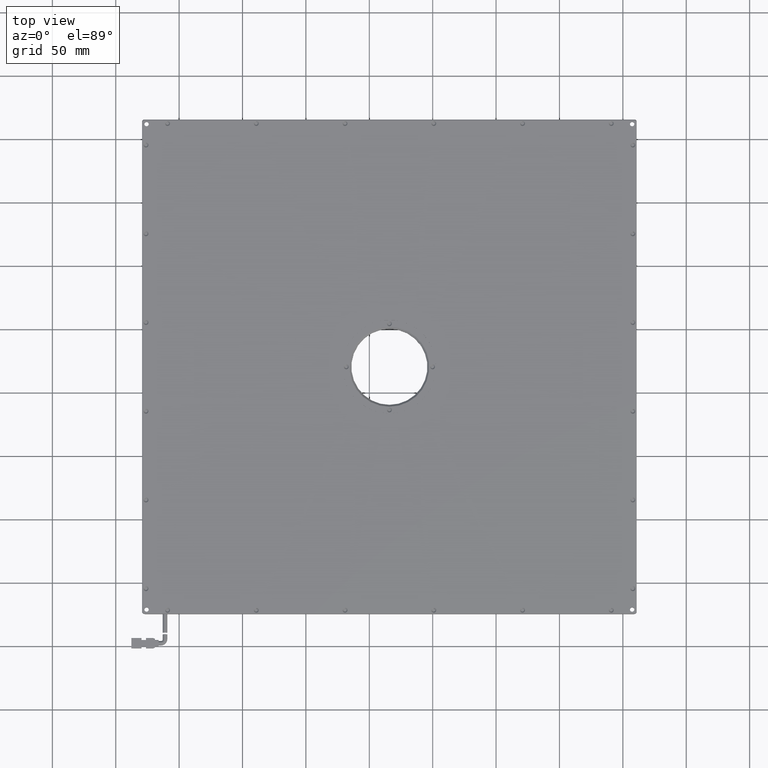
[diagram: clean part render]
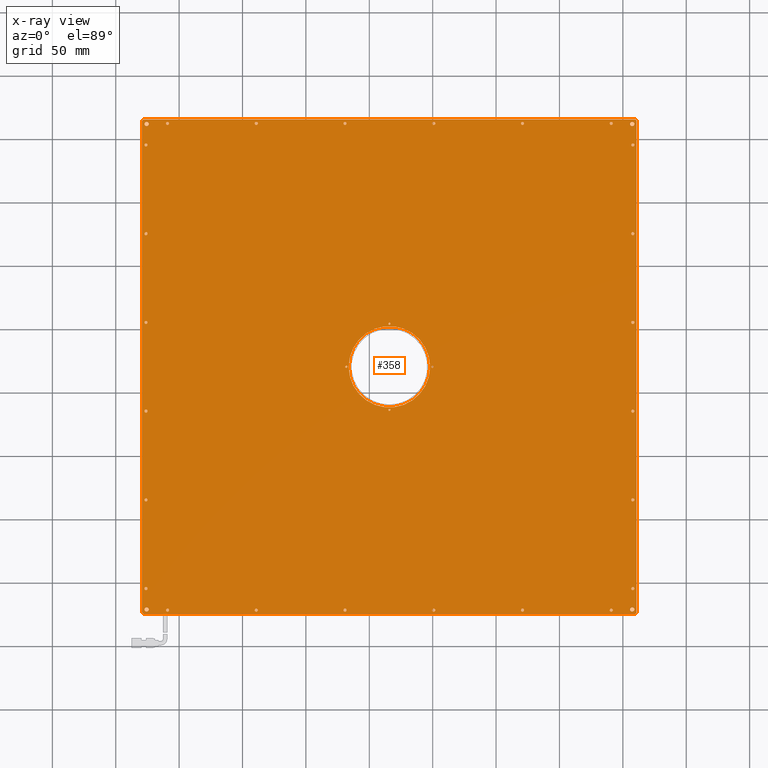
[diagram: x-ray — body ghosted, one internal face saturated and labeled with its STEP entity id]
A machine part, top view, then the same camera in x-ray: the body is ghosted and one INTERNAL B-rep face — a face not visible from any outside direction — is saturated and labeled: STEP entity #358.
In plain terms, the highlighted planar face has unit normal (0, -0, 1).
Its self-contained STEP definition (entity closure, byte-faithful):
#14 = DIRECTION ( 'NONE',  ( 0.0000000000000000000, 0.0000000000000000000, -1.000000000000000000 ) ) ;
#34 = DIRECTION ( 'NONE',  ( 0.0000000000000000000, 0.0000000000000000000, -1.000000000000000000 ) ) ;
#78 = AXIS2_PLACEMENT_3D ( 'NONE', #3281, #14, #4928 ) ;
#98 = CARTESIAN_POINT ( 'NONE',  ( -207.9484017985390400, 212.4229729729718800, 4.249999999999998200 ) ) ;
#112 = EDGE_CURVE ( 'NONE', #13302, #14235, #12412, .T. ) ;
#117 = FACE_BOUND ( 'NONE', #19714, .T. ) ;
#119 = DIRECTION ( 'NONE',  ( 0.0000000000000000000, 0.0000000000000000000, -1.000000000000000000 ) ) ;
#204 = CARTESIAN_POINT ( 'NONE',  ( 159.0515982014616200, 195.4229729729713400, 4.249999999999998200 ) ) ;
#232 = EDGE_LOOP ( 'NONE', ( #3576, #8886 ) ) ;
#270 = DIRECTION ( 'NONE',  ( 0.0000000000000000000, 0.0000000000000000000, -1.000000000000000000 ) ) ;
#285 = EDGE_CURVE ( 'NONE', #21275, #19119, #10242, .T. ) ;
#313 = CIRCLE ( 'NONE', #10414, 1.200000000000006600 ) ;
#318 = EDGE_CURVE ( 'NONE', #8309, #3209, #2806, .T. ) ;
#325 = DIRECTION ( 'NONE',  ( 0.0000000000000000000, 0.0000000000000000000, -1.000000000000000000 ) ) ;
#330 = CARTESIAN_POINT ( 'NONE',  ( -229.1484017985390300, 214.4229729729717100, 4.249999999999996400 ) ) ;
#345 = CIRCLE ( 'NONE', #12551, 1.199999999999999700 ) ;
#358 = ADVANCED_FACE ( 'NONE', ( #6255, #15846, #14265, #117, #18263, #934, #11853, #13745, #17722, #8394, #19869, #9447, #8907, #15323, #4388, #21970, #10777, #13198, #1735, #17475, #1190, #3860, #16925, #12389, #3325, #14524, #19333, #14788, #11046, #18805, #9709, #644, #6531, #2020 ), #907, .F. ) ;
#369 = CARTESIAN_POINT ( 'NONE',  ( -139.1484017985390300, 212.4229729729718800, 4.249999999999998200 ) ) ;
#380 = CARTESIAN_POINT ( 'NONE',  ( -225.6484017985389100, -171.0770270270280700, 4.249999999999998200 ) ) ;
#382 = VERTEX_POINT ( 'NONE', #11252 ) ;
#457 = VERTEX_POINT ( 'NONE', #21734 ) ;
#458 = CIRCLE ( 'NONE', #917, 1.749999999999973800 ) ;
#466 = EDGE_LOOP ( 'NONE', ( #5998, #1728 ) ) ;
#470 = LINE ( 'NONE', #17133, #21518 ) ;
#517 = ORIENTED_EDGE ( 'NONE', *, *, #6321, .F. ) ;
#523 = DIRECTION ( 'NONE',  ( 1.000000000000000000, 0.0000000000000000000, 0.0000000000000000000 ) ) ;
#527 = VERTEX_POINT ( 'NONE', #16759 ) ;
#570 = DIRECTION ( 'NONE',  ( 0.0000000000000000000, 0.0000000000000000000, -1.000000000000000000 ) ) ;
#593 = CIRCLE ( 'NONE', #2178, 1.199999999999999700 ) ;
#612 = DIRECTION ( 'NONE',  ( 1.000000000000000000, 0.0000000000000000000, 0.0000000000000000000 ) ) ;
#625 = AXIS2_PLACEMENT_3D ( 'NONE', #18193, #11242, #4624 ) ;
#644 = FACE_BOUND ( 'NONE', #232, .T. ) ;
#704 = EDGE_CURVE ( 'NONE', #17230, #8408, #13720, .T. ) ;
#756 = CIRCLE ( 'NONE', #19118, 32.10000000000000100 ) ;
#811 = VERTEX_POINT ( 'NONE', #5893 ) ;
#887 = VERTEX_POINT ( 'NONE', #18486 ) ;
#906 = VERTEX_POINT ( 'NONE', #21877 ) ;
#907 = PLANE ( 'NONE',  #15142 ) ;
#917 = AXIS2_PLACEMENT_3D ( 'NONE', #13919, #10528, #10743 ) ;
#928 = CARTESIAN_POINT ( 'NONE',  ( -228.1484017985389100, 215.4229729729718800, 4.249999999999996400 ) ) ;
#934 = FACE_BOUND ( 'NONE', #2349, .T. ) ;
#935 = ORIENTED_EDGE ( 'NONE', *, *, #3450, .F. ) ;
#1003 = EDGE_CURVE ( 'NONE', #6225, #11748, #18469, .T. ) ;
#1017 = EDGE_CURVE ( 'NONE', #382, #5895, #12857, .T. ) ;
#1025 = VERTEX_POINT ( 'NONE', #7518 ) ;
#1068 = CARTESIAN_POINT ( 'NONE',  ( 156.6515982014604400, -154.5770270270286900, 4.249999999999998200 ) ) ;
#1117 = DIRECTION ( 'NONE',  ( 0.0000000000000000000, 0.0000000000000000000, -1.000000000000000000 ) ) ;
#1188 = CARTESIAN_POINT ( 'NONE',  ( -226.1484017985371200, 195.4229729729738900, 4.249999999999998200 ) ) ;
#1190 = FACE_BOUND ( 'NONE', #16070, .T. ) ;
#1272 = AXIS2_PLACEMENT_3D ( 'NONE', #7500, #10691, #10913 ) ;
#1305 = EDGE_CURVE ( 'NONE', #19905, #1025, #9083, .T. ) ;
#1320 = CARTESIAN_POINT ( 'NONE',  ( -227.3484017985385600, 55.42297297297388100, 4.249999999999998200 ) ) ;
#1378 = CIRCLE ( 'NONE', #17289, 1.200000000000006600 ) ;
#1473 = EDGE_LOOP ( 'NONE', ( #13738, #19131 ) ) ;
#1516 = ORIENTED_EDGE ( 'NONE', *, *, #2131, .F. ) ;
#1541 = DIRECTION ( 'NONE',  ( 0.0000000000000000000, 0.0000000000000000000, -1.000000000000000000 ) ) ;
#1552 = CIRCLE ( 'NONE', #10170, 1.200000000000006600 ) ;
#1636 = CARTESIAN_POINT ( 'NONE',  ( 157.8515982014604300, -154.5770270270286900, 4.249999999999998200 ) ) ;
#1706 = CIRCLE ( 'NONE', #12983, 1.749999999999973800 ) ;
#1728 = ORIENTED_EDGE ( 'NONE', *, *, #4549, .F. ) ;
#1735 = FACE_BOUND ( 'NONE', #13937, .T. ) ;
#1749 = CARTESIAN_POINT ( 'NONE',  ( 0.8515982014610026200, 212.4229729729719100, 4.249999999999998200 ) ) ;
#1817 = ORIENTED_EDGE ( 'NONE', *, *, #19271, .F. ) ;
#1842 = CIRCLE ( 'NONE', #8100, 0.7999999999999882800 ) ;
#1846 = EDGE_LOOP ( 'NONE', ( #11390, #10090 ) ) ;
#1879 = EDGE_CURVE ( 'NONE', #906, #8195, #13595, .T. ) ;
#1884 = VERTEX_POINT ( 'NONE', #20104 ) ;
#1891 = DIRECTION ( 'NONE',  ( 0.0000000000000000000, 0.0000000000000000000, -1.000000000000000000 ) ) ;
#1898 = CARTESIAN_POINT ( 'NONE',  ( -34.94840179853893100, -13.57702702702806600, 4.249999999999998200 ) ) ;
#1920 = EDGE_CURVE ( 'NONE', #11688, #10542, #8246, .T. ) ;
#1926 = VERTEX_POINT ( 'NONE', #15256 ) ;
#1943 = AXIS2_PLACEMENT_3D ( 'NONE', #2754, #13026, #6304 ) ;
#1950 = AXIS2_PLACEMENT_3D ( 'NONE', #15027, #15166, #20457 ) ;
#2011 = CARTESIAN_POINT ( 'NONE',  ( -34.14840179853894900, -13.57702702702806600, 4.249999999999998200 ) ) ;
#2020 = FACE_BOUND ( 'NONE', #7882, .T. ) ;
#2051 = ORIENTED_EDGE ( 'NONE', *, *, #6597, .F. ) ;
#2066 = ORIENTED_EDGE ( 'NONE', *, *, #20595, .F. ) ;
#2080 = VERTEX_POINT ( 'NONE', #3242 ) ;
#2131 = EDGE_CURVE ( 'NONE', #11748, #6225, #5031, .T. ) ;
#2176 = CARTESIAN_POINT ( 'NONE',  ( -140.3484017985389000, -171.5770270270280400, 4.249999999999998200 ) ) ;
#2178 = AXIS2_PLACEMENT_3D ( 'NONE', #16957, #119, #3621 ) ;
#2297 = EDGE_CURVE ( 'NONE', #11594, #20652, #6630, .T. ) ;
#2349 = EDGE_LOOP ( 'NONE', ( #7403, #12097 ) ) ;
#2359 = AXIS2_PLACEMENT_3D ( 'NONE', #20348, #20428, #3351 ) ;
#2455 = VERTEX_POINT ( 'NONE', #7282 ) ;
#2501 = DIRECTION ( 'NONE',  ( 0.0000000000000000000, 0.0000000000000000000, -1.000000000000000000 ) ) ;
#2534 = DIRECTION ( 'NONE',  ( 0.0000000000000000000, 0.0000000000000000000, -1.000000000000000000 ) ) ;
#2561 = CIRCLE ( 'NONE', #15104, 1.200000000000006600 ) ;
#2564 = DIRECTION ( 'NONE',  ( 1.000000000000000000, 0.0000000000000000000, 0.0000000000000000000 ) ) ;
#2576 = CARTESIAN_POINT ( 'NONE',  ( 156.6515982014616100, 195.4229729729713400, 4.249999999999998200 ) ) ;
#2663 = VERTEX_POINT ( 'NONE', #15744 ) ;
#2703 = ORIENTED_EDGE ( 'NONE', *, *, #21176, .F. ) ;
#2730 = DIRECTION ( 'NONE',  ( 0.0000000000000000000, 0.0000000000000000000, -1.000000000000000000 ) ) ;
#2754 = CARTESIAN_POINT ( 'NONE',  ( 157.8515982014606600, -84.57702702702867700, 4.249999999999998200 ) ) ;
#2763 = EDGE_CURVE ( 'NONE', #15463, #11393, #14592, .T. ) ;
#2793 = DIRECTION ( 'NONE',  ( 1.000000000000000000, 0.0000000000000000000, 0.0000000000000000000 ) ) ;
#2800 = VERTEX_POINT ( 'NONE', #9389 ) ;
#2806 = LINE ( 'NONE', #10471, #20396 ) ;
#2853 = VERTEX_POINT ( 'NONE', #20131 ) ;
#2884 = AXIS2_PLACEMENT_3D ( 'NONE', #19712, #9393, #2793 ) ;
#2888 = CARTESIAN_POINT ( 'NONE',  ( 142.0515982014611600, -171.5770270270280100, 4.249999999999998200 ) ) ;
#2908 = CARTESIAN_POINT ( 'NONE',  ( -226.1484017985392800, -14.57702702702612300, 4.249999999999998200 ) ) ;
#2915 = CIRCLE ( 'NONE', #17660, 1.200000000000006600 ) ;
#2929 = CIRCLE ( 'NONE', #11228, 1.200000000000006600 ) ;
#2957 = ORIENTED_EDGE ( 'NONE', *, *, #21421, .F. ) ;
#2965 = CARTESIAN_POINT ( 'NONE',  ( -66.24840179853893600, 20.42297297297194100, 4.249999999999998200 ) ) ;
#2980 = DIRECTION ( 'NONE',  ( 1.000000000000000000, 0.0000000000000000000, 0.0000000000000000000 ) ) ;
#2998 = CARTESIAN_POINT ( 'NONE',  ( 2.051598201461002400, 212.4229729729719100, 4.249999999999998200 ) ) ;
#3035 = CIRCLE ( 'NONE', #14745, 1.200000000000006600 ) ;
#3069 = CIRCLE ( 'NONE', #1272, 1.749999999999973800 ) ;
#3113 = VERTEX_POINT ( 'NONE', #98 ) ;
#3174 = DIRECTION ( 'NONE',  ( 1.000000000000000000, 0.0000000000000000000, 0.0000000000000000000 ) ) ;
#3209 = VERTEX_POINT ( 'NONE', #13508 ) ;
#3237 = VERTEX_POINT ( 'NONE', #8280 ) ;
#3242 = CARTESIAN_POINT ( 'NONE',  ( -0.9484017985389310300, 20.42297297297182000, 4.249999999999998200 ) ) ;
#3281 = CARTESIAN_POINT ( 'NONE',  ( -226.1484017985400200, -84.57702702702613400, 4.249999999999998200 ) ) ;
#3290 = CARTESIAN_POINT ( 'NONE',  ( 140.8515982014610300, 212.4229729729719300, 4.249999999999998200 ) ) ;
#3325 = FACE_BOUND ( 'NONE', #4454, .T. ) ;
#3351 = DIRECTION ( 'NONE',  ( 1.000000000000000000, 0.0000000000000000000, 0.0000000000000000000 ) ) ;
#3357 = AXIS2_PLACEMENT_3D ( 'NONE', #3290, #4795, #5073 ) ;
#3360 = CARTESIAN_POINT ( 'NONE',  ( -229.1484017985390300, 215.4229729729719300, 4.249999999999998200 ) ) ;
#3449 = AXIS2_PLACEMENT_3D ( 'NONE', #21350, #17044, #19005 ) ;
#3450 = EDGE_CURVE ( 'NONE', #13243, #13767, #14973, .T. ) ;
#3497 = CARTESIAN_POINT ( 'NONE',  ( -137.9484017985390100, 212.4229729729718800, 4.249999999999998200 ) ) ;
#3502 = AXIS2_PLACEMENT_3D ( 'NONE', #12481, #14137, #12258 ) ;
#3503 = DIRECTION ( 'NONE',  ( 0.0000000000000000000, 0.0000000000000000000, -1.000000000000000000 ) ) ;
#3512 = DIRECTION ( 'NONE',  ( 0.0000000000000000000, 0.0000000000000000000, -1.000000000000000000 ) ) ;
#3518 = AXIS2_PLACEMENT_3D ( 'NONE', #7532, #3802, #3888 ) ;
#3557 = EDGE_CURVE ( 'NONE', #18781, #13847, #15482, .T. ) ;
#3569 = AXIS2_PLACEMENT_3D ( 'NONE', #13826, #3887, #14114 ) ;
#3576 = ORIENTED_EDGE ( 'NONE', *, *, #5314, .F. ) ;
#3596 = DIRECTION ( 'NONE',  ( 0.0000000000000000000, 0.0000000000000000000, -1.000000000000000000 ) ) ;
#3621 = DIRECTION ( 'NONE',  ( 1.000000000000000000, 0.0000000000000000000, 0.0000000000000000000 ) ) ;
#3721 = EDGE_CURVE ( 'NONE', #3113, #457, #5056, .T. ) ;
#3730 = DIRECTION ( 'NONE',  ( 1.000000000000000000, 0.0000000000000000000, 0.0000000000000000000 ) ) ;
#3762 = ORIENTED_EDGE ( 'NONE', *, *, #10014, .F. ) ;
#3802 = DIRECTION ( 'NONE',  ( 0.0000000000000000000, 0.0000000000000000000, -1.000000000000000000 ) ) ;
#3860 = FACE_BOUND ( 'NONE', #13077, .T. ) ;
#3887 = DIRECTION ( 'NONE',  ( 0.0000000000000000000, 0.0000000000000000000, -1.000000000000000000 ) ) ;
#3888 = DIRECTION ( 'NONE',  ( 1.000000000000000000, 0.0000000000000000000, 0.0000000000000000000 ) ) ;
#3919 = VERTEX_POINT ( 'NONE', #3497 ) ;
#3937 = EDGE_LOOP ( 'NONE', ( #17883, #18953 ) ) ;
#4019 = CIRCLE ( 'NONE', #18022, 1.200000000000006600 ) ;
#4107 = CARTESIAN_POINT ( 'NONE',  ( -69.14840179853901200, 212.4229729729719100, 4.249999999999998200 ) ) ;
#4181 = DIRECTION ( 'NONE',  ( 1.000000000000000000, 0.0000000000000000000, 0.0000000000000000000 ) ) ;
#4199 = CARTESIAN_POINT ( 'NONE',  ( -228.1484017985390800, -174.5770270270281200, 4.249999999999996400 ) ) ;
#4213 = ORIENTED_EDGE ( 'NONE', *, *, #18849, .F. ) ;
#4218 = CARTESIAN_POINT ( 'NONE',  ( 159.0515982014609300, -14.57702702702867700, 4.249999999999998200 ) ) ;
#4258 = DIRECTION ( 'NONE',  ( 1.000000000000000000, 0.0000000000000000000, 0.0000000000000000000 ) ) ;
#4315 = LINE ( 'NONE', #17843, #17396 ) ;
#4316 = EDGE_LOOP ( 'NONE', ( #935, #13532 ) ) ;
#4381 = ORIENTED_EDGE ( 'NONE', *, *, #10685, .F. ) ;
#4388 = FACE_BOUND ( 'NONE', #10609, .T. ) ;
#4430 = VERTEX_POINT ( 'NONE', #18919 ) ;
#4454 = EDGE_LOOP ( 'NONE', ( #6233, #10213 ) ) ;
#4459 = EDGE_CURVE ( 'NONE', #19119, #21275, #1552, .T. ) ;
#4465 = AXIS2_PLACEMENT_3D ( 'NONE', #16535, #1541, #8669 ) ;
#4468 = DIRECTION ( 'NONE',  ( 1.000000000000000000, 0.0000000000000000000, 0.0000000000000000000 ) ) ;
#4470 = CARTESIAN_POINT ( 'NONE',  ( 70.85159820146114400, -171.5770270270280100, 4.249999999999998200 ) ) ;
#4529 = LINE ( 'NONE', #3360, #7182 ) ;
#4542 = DIRECTION ( 'NONE',  ( 1.000000000000000000, 0.0000000000000000000, 0.0000000000000000000 ) ) ;
#4549 = EDGE_CURVE ( 'NONE', #18503, #3237, #458, .T. ) ;
#4557 = DIRECTION ( 'NONE',  ( 1.000000000000000000, 0.0000000000000000000, 0.0000000000000000000 ) ) ;
#4618 = DIRECTION ( 'NONE',  ( 0.0000000000000000000, 0.0000000000000000000, -1.000000000000000000 ) ) ;
#4624 = DIRECTION ( 'NONE',  ( 1.000000000000000000, 0.0000000000000000000, 0.0000000000000000000 ) ) ;
#4627 = AXIS2_PLACEMENT_3D ( 'NONE', #7308, #12600, #523 ) ;
#4631 = ORIENTED_EDGE ( 'NONE', *, *, #15505, .F. ) ;
#4653 = CARTESIAN_POINT ( 'NONE',  ( 157.8515982014604300, -154.5770270270286900, 4.249999999999998200 ) ) ;
#4731 = AXIS2_PLACEMENT_3D ( 'NONE', #17761, #16318, #4258 ) ;
#4795 = DIRECTION ( 'NONE',  ( 0.0000000000000000000, 0.0000000000000000000, -1.000000000000000000 ) ) ;
#4819 = AXIS2_PLACEMENT_3D ( 'NONE', #7076, #12229, #3730 ) ;
#4852 = CIRCLE ( 'NONE', #11703, 1.200000000000006600 ) ;
#4904 = DIRECTION ( 'NONE',  ( -0.7071067811865474600, 0.7071067811865474600, 0.0000000000000000000 ) ) ;
#4928 = DIRECTION ( 'NONE',  ( 1.000000000000000000, 0.0000000000000000000, 0.0000000000000000000 ) ) ;
#4954 = DIRECTION ( 'NONE',  ( 1.000000000000000000, 0.0000000000000000000, 0.0000000000000000000 ) ) ;
#4961 = DIRECTION ( 'NONE',  ( 1.000000000000000000, 0.0000000000000000000, 0.0000000000000000000 ) ) ;
#5031 = CIRCLE ( 'NONE', #12043, 1.200000000000006600 ) ;
#5056 = CIRCLE ( 'NONE', #10716, 1.200000000000006600 ) ;
#5071 = CIRCLE ( 'NONE', #20973, 1.200000000000006600 ) ;
#5073 = DIRECTION ( 'NONE',  ( 1.000000000000000000, 0.0000000000000000000, 0.0000000000000000000 ) ) ;
#5077 = CARTESIAN_POINT ( 'NONE',  ( -67.34840179853895800, 20.42297297297229300, 4.249999999999998200 ) ) ;
#5093 = DIRECTION ( 'NONE',  ( 0.0000000000000000000, 0.0000000000000000000, -1.000000000000000000 ) ) ;
#5187 = CARTESIAN_POINT ( 'NONE',  ( -224.9484017985378400, 125.4229729729738900, 4.249999999999998200 ) ) ;
#5188 = DIRECTION ( 'NONE',  ( 0.0000000000000000000, 0.0000000000000000000, -1.000000000000000000 ) ) ;
#5199 = EDGE_CURVE ( 'NONE', #1926, #811, #6798, .T. ) ;
#5216 = DIRECTION ( 'NONE',  ( 0.0000000000000000000, 0.0000000000000000000, -1.000000000000000000 ) ) ;
#5263 = CIRCLE ( 'NONE', #3518, 1.200000000000006600 ) ;
#5269 = VERTEX_POINT ( 'NONE', #2888 ) ;
#5314 = EDGE_CURVE ( 'NONE', #15630, #2080, #7310, .T. ) ;
#5383 = CARTESIAN_POINT ( 'NONE',  ( -226.1484017985385700, 55.42297297297388100, 4.249999999999998200 ) ) ;
#5391 = EDGE_CURVE ( 'NONE', #5269, #16446, #17734, .T. ) ;
#5568 = VERTEX_POINT ( 'NONE', #10738 ) ;
#5635 = CARTESIAN_POINT ( 'NONE',  ( 157.8515982014606600, -84.57702702702867700, 4.249999999999998200 ) ) ;
#5649 = DIRECTION ( 'NONE',  ( 0.0000000000000000000, 0.0000000000000000000, -1.000000000000000000 ) ) ;
#5693 = EDGE_CURVE ( 'NONE', #7644, #15454, #5698, .T. ) ;
#5698 = CIRCLE ( 'NONE', #20784, 1.200000000000006600 ) ;
#5766 = ORIENTED_EDGE ( 'NONE', *, *, #18219, .F. ) ;
#5801 = ORIENTED_EDGE ( 'NONE', *, *, #4459, .F. ) ;
#5806 = EDGE_CURVE ( 'NONE', #13767, #13243, #18416, .T. ) ;
#5828 = DIRECTION ( 'NONE',  ( 1.000000000000000000, 0.0000000000000000000, -0.0000000000000000000 ) ) ;
#5893 = CARTESIAN_POINT ( 'NONE',  ( -33.34840179853895800, 54.42297297297194100, 4.249999999999998200 ) ) ;
#5895 = VERTEX_POINT ( 'NONE', #2998 ) ;
#5913 = EDGE_CURVE ( 'NONE', #21245, #9481, #4529, .T. ) ;
#5919 = DIRECTION ( 'NONE',  ( 1.000000000000000000, 0.0000000000000000000, 0.0000000000000000000 ) ) ;
#5934 = EDGE_CURVE ( 'NONE', #9484, #5568, #2929, .T. ) ;
#5998 = ORIENTED_EDGE ( 'NONE', *, *, #6264, .F. ) ;
#6075 = CARTESIAN_POINT ( 'NONE',  ( -224.9484017985385500, 55.42297297297388100, 4.249999999999998200 ) ) ;
#6109 = AXIS2_PLACEMENT_3D ( 'NONE', #14752, #21655, #4557 ) ;
#6121 = ORIENTED_EDGE ( 'NONE', *, *, #8671, .F. ) ;
#6138 = EDGE_CURVE ( 'NONE', #16698, #3209, #10603, .T. ) ;
#6152 = DIRECTION ( 'NONE',  ( 1.000000000000000000, 0.0000000000000000000, 0.0000000000000000000 ) ) ;
#6165 = ORIENTED_EDGE ( 'NONE', *, *, #16169, .F. ) ;
#6225 = VERTEX_POINT ( 'NONE', #9520 ) ;
#6233 = ORIENTED_EDGE ( 'NONE', *, *, #704, .F. ) ;
#6253 = EDGE_CURVE ( 'NONE', #21313, #16158, #756, .T. ) ;
#6255 = FACE_OUTER_BOUND ( 'NONE', #11061, .T. ) ;
#6264 = EDGE_CURVE ( 'NONE', #3237, #18503, #20500, .T. ) ;
#6271 = VERTEX_POINT ( 'NONE', #17968 ) ;
#6304 = DIRECTION ( 'NONE',  ( 1.000000000000000000, 0.0000000000000000000, 0.0000000000000000000 ) ) ;
#6321 = EDGE_CURVE ( 'NONE', #10319, #6674, #1842, .T. ) ;
#6338 = EDGE_LOOP ( 'NONE', ( #16736, #11265 ) ) ;
#6455 = AXIS2_PLACEMENT_3D ( 'NONE', #16946, #9093, #10880 ) ;
#6472 = CARTESIAN_POINT ( 'NONE',  ( 157.8515982014609200, -14.57702702702867700, 4.249999999999998200 ) ) ;
#6531 = FACE_BOUND ( 'NONE', #20900, .T. ) ;
#6597 = EDGE_CURVE ( 'NONE', #19412, #9692, #7375, .T. ) ;
#6630 = CIRCLE ( 'NONE', #2359, 1.749999999999973800 ) ;
#6631 = DIRECTION ( 'NONE',  ( -0.0000000000000000000, -1.000000000000000000, -0.0000000000000000000 ) ) ;
#6655 = CARTESIAN_POINT ( 'NONE',  ( -227.3484017985393000, -14.57702702702612300, 4.249999999999998200 ) ) ;
#6674 = VERTEX_POINT ( 'NONE', #20968 ) ;
#6798 = CIRCLE ( 'NONE', #11045, 0.7999999999999882800 ) ;
#6810 = DIRECTION ( 'NONE',  ( 0.0000000000000000000, 0.0000000000000000000, -1.000000000000000000 ) ) ;
#6887 = CARTESIAN_POINT ( 'NONE',  ( -67.94840179853901000, 212.4229729729719100, 4.249999999999998200 ) ) ;
#7045 = ORIENTED_EDGE ( 'NONE', *, *, #6253, .F. ) ;
#7052 = EDGE_LOOP ( 'NONE', ( #11146, #10350 ) ) ;
#7076 = CARTESIAN_POINT ( 'NONE',  ( 140.8515982014610300, 212.4229729729719300, 4.249999999999998200 ) ) ;
#7115 = DIRECTION ( 'NONE',  ( 1.000000000000000000, 0.0000000000000000000, 0.0000000000000000000 ) ) ;
#7126 = AXIS2_PLACEMENT_3D ( 'NONE', #13483, #20324, #8250 ) ;
#7142 = LINE ( 'NONE', #13496, #19173 ) ;
#7182 = VECTOR ( 'NONE', #8645, 1000.000000000000000 ) ;
#7190 = VERTEX_POINT ( 'NONE', #6887 ) ;
#7219 = DIRECTION ( 'NONE',  ( 1.000000000000000000, 0.0000000000000000000, 0.0000000000000000000 ) ) ;
#7282 = CARTESIAN_POINT ( 'NONE',  ( 160.8515982014610000, 214.4229729729719300, 4.249999999999996400 ) ) ;
#7308 = CARTESIAN_POINT ( 'NONE',  ( -226.1484017985378300, 125.4229729729738900, 4.249999999999998200 ) ) ;
#7310 = CIRCLE ( 'NONE', #1950, 0.7999999999999882800 ) ;
#7375 = CIRCLE ( 'NONE', #17544, 0.7999999999999951600 ) ;
#7403 = ORIENTED_EDGE ( 'NONE', *, *, #15566, .F. ) ;
#7413 = EDGE_LOOP ( 'NONE', ( #20499, #10747 ) ) ;
#7423 = DIRECTION ( 'NONE',  ( 1.000000000000000000, 0.0000000000000000000, 0.0000000000000000000 ) ) ;
#7430 = AXIS2_PLACEMENT_3D ( 'NONE', #7520, #5649, #7219 ) ;
#7431 = EDGE_CURVE ( 'NONE', #457, #3113, #21966, .T. ) ;
#7500 = CARTESIAN_POINT ( 'NONE',  ( 157.3515982014603800, -171.0770270270286900, 4.249999999999998200 ) ) ;
#7518 = CARTESIAN_POINT ( 'NONE',  ( 159.1015982014603500, -171.0770270270286900, 4.249999999999998200 ) ) ;
#7520 = CARTESIAN_POINT ( 'NONE',  ( -226.1484017985371200, 195.4229729729738900, 4.249999999999998200 ) ) ;
#7532 = CARTESIAN_POINT ( 'NONE',  ( -226.1484017985407600, -154.5770270270261300, 4.249999999999998200 ) ) ;
#7545 = CIRCLE ( 'NONE', #15476, 1.199999999999999700 ) ;
#7644 = VERTEX_POINT ( 'NONE', #11590 ) ;
#7676 = CARTESIAN_POINT ( 'NONE',  ( 70.85159820146100200, 212.4229729729719100, 4.249999999999998200 ) ) ;
#7725 = EDGE_CURVE ( 'NONE', #2853, #4430, #345, .T. ) ;
#7826 = CARTESIAN_POINT ( 'NONE',  ( -229.1484017985390300, 215.4229729729718800, 4.249999999999998200 ) ) ;
#7882 = EDGE_LOOP ( 'NONE', ( #13375, #2051 ) ) ;
#7957 = ORIENTED_EDGE ( 'NONE', *, *, #15051, .T. ) ;
#7972 = CARTESIAN_POINT ( 'NONE',  ( -69.14840179853889900, -171.5770270270280400, 4.249999999999998200 ) ) ;
#8035 = DIRECTION ( 'NONE',  ( 0.0000000000000000000, 0.0000000000000000000, -1.000000000000000000 ) ) ;
#8100 = AXIS2_PLACEMENT_3D ( 'NONE', #9747, #12964, #4468 ) ;
#8111 = DIRECTION ( 'NONE',  ( 0.0000000000000000000, 0.0000000000000000000, -1.000000000000000000 ) ) ;
#8195 = VERTEX_POINT ( 'NONE', #6655 ) ;
#8220 = CIRCLE ( 'NONE', #4731, 1.200000000000006600 ) ;
#8246 = CIRCLE ( 'NONE', #15049, 1.200000000000006600 ) ;
#8250 = DIRECTION ( 'NONE',  ( 1.000000000000000000, 0.0000000000000000000, 0.0000000000000000000 ) ) ;
#8254 = CIRCLE ( 'NONE', #19367, 1.200000000000006600 ) ;
#8280 = CARTESIAN_POINT ( 'NONE',  ( 159.1015982014609700, 211.9229729729719300, 4.249999999999998200 ) ) ;
#8305 = CIRCLE ( 'NONE', #15302, 1.200000000000006600 ) ;
#8309 = VERTEX_POINT ( 'NONE', #8369 ) ;
#8319 = CARTESIAN_POINT ( 'NONE',  ( -34.14840179853894900, 54.42297297297194100, 4.249999999999998200 ) ) ;
#8333 = EDGE_CURVE ( 'NONE', #2800, #15053, #12327, .T. ) ;
#8339 = DIRECTION ( 'NONE',  ( 0.0000000000000000000, 0.0000000000000000000, -1.000000000000000000 ) ) ;
#8369 = CARTESIAN_POINT ( 'NONE',  ( 160.8515982014610000, -173.5770270270280100, 4.249999999999996400 ) ) ;
#8394 = FACE_BOUND ( 'NONE', #15426, .T. ) ;
#8408 = VERTEX_POINT ( 'NONE', #17237 ) ;
#8508 = CARTESIAN_POINT ( 'NONE',  ( 72.05159820146100500, 212.4229729729719100, 4.249999999999998200 ) ) ;
#8552 = EDGE_CURVE ( 'NONE', #11393, #15463, #313, .T. ) ;
#8576 = DIRECTION ( 'NONE',  ( 1.000000000000000000, 0.0000000000000000000, 0.0000000000000000000 ) ) ;
#8645 = DIRECTION ( 'NONE',  ( -1.000000000000000000, -0.0000000000000000000, 0.0000000000000000000 ) ) ;
#8659 = AXIS2_PLACEMENT_3D ( 'NONE', #17400, #15882, #10727 ) ;
#8669 = DIRECTION ( 'NONE',  ( 1.000000000000000000, 0.0000000000000000000, 0.0000000000000000000 ) ) ;
#8671 = EDGE_CURVE ( 'NONE', #20281, #17913, #1378, .T. ) ;
#8696 = EDGE_CURVE ( 'NONE', #887, #19971, #17627, .T. ) ;
#8770 = CARTESIAN_POINT ( 'NONE',  ( -229.1484017985390300, -174.5770270270281200, 4.249999999999998200 ) ) ;
#8831 = EDGE_CURVE ( 'NONE', #527, #3919, #5071, .T. ) ;
#8857 = DIRECTION ( 'NONE',  ( 1.000000000000000000, 0.0000000000000000000, 0.0000000000000000000 ) ) ;
#8886 = ORIENTED_EDGE ( 'NONE', *, *, #16044, .F. ) ;
#8907 = FACE_BOUND ( 'NONE', #18295, .T. ) ;
#9013 = CARTESIAN_POINT ( 'NONE',  ( -224.9484017985371100, 195.4229729729738900, 4.249999999999998200 ) ) ;
#9083 = CIRCLE ( 'NONE', #18315, 1.749999999999973800 ) ;
#9093 = DIRECTION ( 'NONE',  ( 0.0000000000000000000, 0.0000000000000000000, -1.000000000000000000 ) ) ;
#9167 = ORIENTED_EDGE ( 'NONE', *, *, #9892, .F. ) ;
#9228 = DIRECTION ( 'NONE',  ( 0.0000000000000000000, 0.0000000000000000000, -1.000000000000000000 ) ) ;
#9270 = CARTESIAN_POINT ( 'NONE',  ( 157.8515982014616000, 195.4229729729713400, 4.249999999999998200 ) ) ;
#9315 = EDGE_CURVE ( 'NONE', #4430, #2853, #593, .T. ) ;
#9389 = CARTESIAN_POINT ( 'NONE',  ( 159.0515982014613900, 125.4229729729713400, 4.249999999999998200 ) ) ;
#9393 = DIRECTION ( 'NONE',  ( 0.0000000000000000000, 0.0000000000000000000, -1.000000000000000000 ) ) ;
#9409 = CIRCLE ( 'NONE', #12518, 1.200000000000006600 ) ;
#9447 = FACE_BOUND ( 'NONE', #19817, .T. ) ;
#9451 = EDGE_LOOP ( 'NONE', ( #3762, #2957 ) ) ;
#9481 = VERTEX_POINT ( 'NONE', #928 ) ;
#9484 = VERTEX_POINT ( 'NONE', #19504 ) ;
#9520 = CARTESIAN_POINT ( 'NONE',  ( -207.9484017985389200, -171.5770270270280700, 4.249999999999998200 ) ) ;
#9629 = ORIENTED_EDGE ( 'NONE', *, *, #8696, .F. ) ;
#9672 = DIRECTION ( 'NONE',  ( 0.0000000000000000000, 0.0000000000000000000, -1.000000000000000000 ) ) ;
#9692 = VERTEX_POINT ( 'NONE', #5077 ) ;
#9709 = FACE_BOUND ( 'NONE', #12257, .T. ) ;
#9747 = CARTESIAN_POINT ( 'NONE',  ( -34.14840179853894900, -13.57702702702806600, 4.249999999999998200 ) ) ;
#9750 = DIRECTION ( 'NONE',  ( 1.000000000000000000, 0.0000000000000000000, 0.0000000000000000000 ) ) ;
#9827 = CARTESIAN_POINT ( 'NONE',  ( -139.1484017985389100, -171.5770270270280400, 4.249999999999998200 ) ) ;
#9850 = EDGE_CURVE ( 'NONE', #9692, #19412, #15479, .T. ) ;
#9860 = ORIENTED_EDGE ( 'NONE', *, *, #5913, .F. ) ;
#9877 = DIRECTION ( 'NONE',  ( 0.0000000000000000000, 0.0000000000000000000, -1.000000000000000000 ) ) ;
#9892 = EDGE_CURVE ( 'NONE', #10997, #10857, #17618, .T. ) ;
#9900 = DIRECTION ( 'NONE',  ( 0.0000000000000000000, 0.0000000000000000000, -1.000000000000000000 ) ) ;
#9923 = DIRECTION ( 'NONE',  ( 1.000000000000000000, 0.0000000000000000000, 0.0000000000000000000 ) ) ;
#10012 = CARTESIAN_POINT ( 'NONE',  ( 140.8515982014611400, -171.5770270270280100, 4.249999999999998200 ) ) ;
#10014 = EDGE_CURVE ( 'NONE', #10903, #16442, #15202, .T. ) ;
#10090 = ORIENTED_EDGE ( 'NONE', *, *, #1305, .F. ) ;
#10170 = AXIS2_PLACEMENT_3D ( 'NONE', #5383, #10605, #14209 ) ;
#10182 = DIRECTION ( 'NONE',  ( 1.000000000000000000, 0.0000000000000000000, -0.0000000000000000000 ) ) ;
#10213 = ORIENTED_EDGE ( 'NONE', *, *, #14450, .F. ) ;
#10242 = CIRCLE ( 'NONE', #20830, 1.200000000000006600 ) ;
#10269 = EDGE_LOOP ( 'NONE', ( #5801, #21897 ) ) ;
#10319 = VERTEX_POINT ( 'NONE', #1898 ) ;
#10350 = ORIENTED_EDGE ( 'NONE', *, *, #7431, .F. ) ;
#10353 = EDGE_LOOP ( 'NONE', ( #9629, #16708 ) ) ;
#10381 = ORIENTED_EDGE ( 'NONE', *, *, #3557, .F. ) ;
#10414 = AXIS2_PLACEMENT_3D ( 'NONE', #4470, #21446, #18041 ) ;
#10471 = CARTESIAN_POINT ( 'NONE',  ( 160.8515982014610000, -173.5770270270280100, 4.249999999999996400 ) ) ;
#10528 = DIRECTION ( 'NONE',  ( 0.0000000000000000000, 0.0000000000000000000, -1.000000000000000000 ) ) ;
#10542 = VERTEX_POINT ( 'NONE', #15735 ) ;
#10603 = LINE ( 'NONE', #8770, #11417 ) ;
#10605 = DIRECTION ( 'NONE',  ( 0.0000000000000000000, 0.0000000000000000000, -1.000000000000000000 ) ) ;
#10609 = EDGE_LOOP ( 'NONE', ( #13716, #17874 ) ) ;
#10611 = DIRECTION ( 'NONE',  ( -0.7071067811865474600, -0.7071067811865474600, 0.0000000000000000000 ) ) ;
#10624 = DIRECTION ( 'NONE',  ( 1.000000000000000000, 0.0000000000000000000, 0.0000000000000000000 ) ) ;
#10674 = CIRCLE ( 'NONE', #1943, 1.200000000000006600 ) ;
#10685 = EDGE_CURVE ( 'NONE', #16158, #21313, #21010, .T. ) ;
#10691 = DIRECTION ( 'NONE',  ( 0.0000000000000000000, 0.0000000000000000000, -1.000000000000000000 ) ) ;
#10707 = EDGE_CURVE ( 'NONE', #15454, #7644, #12781, .T. ) ;
#10716 = AXIS2_PLACEMENT_3D ( 'NONE', #14755, #9672, #13276 ) ;
#10727 = DIRECTION ( 'NONE',  ( 1.000000000000000000, 0.0000000000000000000, 0.0000000000000000000 ) ) ;
#10738 = CARTESIAN_POINT ( 'NONE',  ( 159.0515982014611300, 55.42297297297133700, 4.249999999999998200 ) ) ;
#10743 = DIRECTION ( 'NONE',  ( 1.000000000000000000, 0.0000000000000000000, 0.0000000000000000000 ) ) ;
#10744 = ORIENTED_EDGE ( 'NONE', *, *, #16876, .F. ) ;
#10747 = ORIENTED_EDGE ( 'NONE', *, *, #8831, .F. ) ;
#10777 = FACE_BOUND ( 'NONE', #1473, .T. ) ;
#10809 = ORIENTED_EDGE ( 'NONE', *, *, #17854, .F. ) ;
#10822 = EDGE_CURVE ( 'NONE', #16698, #18246, #7142, .T. ) ;
#10857 = VERTEX_POINT ( 'NONE', #16904 ) ;
#10880 = DIRECTION ( 'NONE',  ( 1.000000000000000000, 0.0000000000000000000, 0.0000000000000000000 ) ) ;
#10903 = VERTEX_POINT ( 'NONE', #5187 ) ;
#10913 = DIRECTION ( 'NONE',  ( 1.000000000000000000, 0.0000000000000000000, 0.0000000000000000000 ) ) ;
#10997 = VERTEX_POINT ( 'NONE', #21041 ) ;
#11045 = AXIS2_PLACEMENT_3D ( 'NONE', #16650, #14649, #6152 ) ;
#11046 = FACE_BOUND ( 'NONE', #20391, .T. ) ;
#11061 = EDGE_LOOP ( 'NONE', ( #13062, #11067, #7957, #9860, #16683, #18911, #16958, #17695 ) ) ;
#11067 = ORIENTED_EDGE ( 'NONE', *, *, #20709, .F. ) ;
#11105 = EDGE_LOOP ( 'NONE', ( #15219, #11368 ) ) ;
#11146 = ORIENTED_EDGE ( 'NONE', *, *, #3721, .F. ) ;
#11197 = CARTESIAN_POINT ( 'NONE',  ( -210.3484017985389600, -171.5770270270280700, 4.249999999999998200 ) ) ;
#11228 = AXIS2_PLACEMENT_3D ( 'NONE', #18578, #3512, #8576 ) ;
#11242 = DIRECTION ( 'NONE',  ( 0.0000000000000000000, 0.0000000000000000000, -1.000000000000000000 ) ) ;
#11252 = CARTESIAN_POINT ( 'NONE',  ( -0.3484017985389970000, 212.4229729729719100, 4.249999999999998200 ) ) ;
#11265 = ORIENTED_EDGE ( 'NONE', *, *, #15334, .F. ) ;
#11352 = CARTESIAN_POINT ( 'NONE',  ( -229.1484017985390300, 214.4229729729717600, 4.249999999999996400 ) ) ;
#11368 = ORIENTED_EDGE ( 'NONE', *, *, #7725, .F. ) ;
#11390 = ORIENTED_EDGE ( 'NONE', *, *, #18880, .F. ) ;
#11393 = VERTEX_POINT ( 'NONE', #13984 ) ;
#11417 = VECTOR ( 'NONE', #10182, 1000.000000000000000 ) ;
#11442 = EDGE_CURVE ( 'NONE', #20652, #11594, #16412, .T. ) ;
#11455 = ORIENTED_EDGE ( 'NONE', *, *, #11973, .F. ) ;
#11537 = DIRECTION ( 'NONE',  ( 0.0000000000000000000, 0.0000000000000000000, -1.000000000000000000 ) ) ;
#11590 = CARTESIAN_POINT ( 'NONE',  ( -67.94840179853889600, -171.5770270270280400, 4.249999999999998200 ) ) ;
#11592 = CARTESIAN_POINT ( 'NONE',  ( -209.1484017985389400, -171.5770270270280700, 4.249999999999998200 ) ) ;
#11594 = VERTEX_POINT ( 'NONE', #15893 ) ;
#11608 = CARTESIAN_POINT ( 'NONE',  ( 155.6015982014610300, 211.9229729729719300, 4.249999999999998200 ) ) ;
#11662 = AXIS2_PLACEMENT_3D ( 'NONE', #6472, #9900, #20334 ) ;
#11688 = VERTEX_POINT ( 'NONE', #1068 ) ;
#11703 = AXIS2_PLACEMENT_3D ( 'NONE', #21459, #16322, #21382 ) ;
#11715 = EDGE_LOOP ( 'NONE', ( #14691, #2066 ) ) ;
#11748 = VERTEX_POINT ( 'NONE', #11197 ) ;
#11853 = FACE_BOUND ( 'NONE', #16023, .T. ) ;
#11905 = CARTESIAN_POINT ( 'NONE',  ( -226.1484017985400200, -84.57702702702613400, 4.249999999999998200 ) ) ;
#11973 = EDGE_CURVE ( 'NONE', #2663, #17293, #20747, .T. ) ;
#11986 = CARTESIAN_POINT ( 'NONE',  ( -68.14840179853895600, 20.42297297297229300, 4.249999999999998200 ) ) ;
#12035 = CARTESIAN_POINT ( 'NONE',  ( -225.6484017985369500, 211.9229729729738900, 4.249999999999998200 ) ) ;
#12043 = AXIS2_PLACEMENT_3D ( 'NONE', #11592, #5093, #13479 ) ;
#12044 = EDGE_CURVE ( 'NONE', #3919, #527, #2915, .T. ) ;
#12093 = CIRCLE ( 'NONE', #4819, 1.200000000000006600 ) ;
#12097 = ORIENTED_EDGE ( 'NONE', *, *, #112, .F. ) ;
#12108 = ORIENTED_EDGE ( 'NONE', *, *, #1879, .F. ) ;
#12161 = CARTESIAN_POINT ( 'NONE',  ( -68.14840179853895600, 20.42297297297229300, 4.249999999999998200 ) ) ;
#12229 = DIRECTION ( 'NONE',  ( 0.0000000000000000000, 0.0000000000000000000, -1.000000000000000000 ) ) ;
#12257 = EDGE_LOOP ( 'NONE', ( #2703, #14274 ) ) ;
#12258 = DIRECTION ( 'NONE',  ( 1.000000000000000000, 0.0000000000000000000, 0.0000000000000000000 ) ) ;
#12298 = EDGE_LOOP ( 'NONE', ( #7045, #4381 ) ) ;
#12313 = DIRECTION ( 'NONE',  ( 0.0000000000000000000, 0.0000000000000000000, -1.000000000000000000 ) ) ;
#12327 = CIRCLE ( 'NONE', #3569, 1.200000000000006600 ) ;
#12389 = FACE_BOUND ( 'NONE', #9451, .T. ) ;
#12394 = CARTESIAN_POINT ( 'NONE',  ( -68.94840179853895300, 20.42297297297229300, 4.249999999999998200 ) ) ;
#12400 = CARTESIAN_POINT ( 'NONE',  ( 156.6515982014609000, -14.57702702702867700, 4.249999999999998200 ) ) ;
#12412 = CIRCLE ( 'NONE', #7126, 1.200000000000006600 ) ;
#12436 = CARTESIAN_POINT ( 'NONE',  ( -139.1484017985390300, 212.4229729729718800, 4.249999999999998200 ) ) ;
#12481 = CARTESIAN_POINT ( 'NONE',  ( -226.1484017985378300, 125.4229729729738900, 4.249999999999998200 ) ) ;
#12518 = AXIS2_PLACEMENT_3D ( 'NONE', #16095, #14531, #2564 ) ;
#12536 = ORIENTED_EDGE ( 'NONE', *, *, #1003, .F. ) ;
#12551 = AXIS2_PLACEMENT_3D ( 'NONE', #17264, #20810, #13699 ) ;
#12600 = DIRECTION ( 'NONE',  ( 0.0000000000000000000, 0.0000000000000000000, -1.000000000000000000 ) ) ;
#12608 = AXIS2_PLACEMENT_3D ( 'NONE', #380, #12313, #20587 ) ;
#12781 = CIRCLE ( 'NONE', #17363, 1.200000000000006600 ) ;
#12807 = AXIS2_PLACEMENT_3D ( 'NONE', #21672, #18362, #9923 ) ;
#12857 = CIRCLE ( 'NONE', #3449, 1.199999999999999700 ) ;
#12898 = AXIS2_PLACEMENT_3D ( 'NONE', #18395, #9877, #21779 ) ;
#12901 = CARTESIAN_POINT ( 'NONE',  ( -34.14840179853894900, 20.42297297297193700, 4.249999999999998200 ) ) ;
#12964 = DIRECTION ( 'NONE',  ( 0.0000000000000000000, 0.0000000000000000000, -1.000000000000000000 ) ) ;
#12983 = AXIS2_PLACEMENT_3D ( 'NONE', #15373, #34, #13770 ) ;
#12990 = EDGE_CURVE ( 'NONE', #8195, #906, #2561, .T. ) ;
#12994 = ORIENTED_EDGE ( 'NONE', *, *, #19599, .F. ) ;
#13026 = DIRECTION ( 'NONE',  ( 0.0000000000000000000, 0.0000000000000000000, -1.000000000000000000 ) ) ;
#13050 = DIRECTION ( 'NONE',  ( 1.000000000000000000, 0.0000000000000000000, 0.0000000000000000000 ) ) ;
#13062 = ORIENTED_EDGE ( 'NONE', *, *, #10822, .T. ) ;
#13077 = EDGE_LOOP ( 'NONE', ( #12108, #16695 ) ) ;
#13198 = FACE_BOUND ( 'NONE', #10353, .T. ) ;
#13202 = DIRECTION ( 'NONE',  ( 1.000000000000000000, 0.0000000000000000000, 0.0000000000000000000 ) ) ;
#13243 = VERTEX_POINT ( 'NONE', #4218 ) ;
#13276 = DIRECTION ( 'NONE',  ( 1.000000000000000000, 0.0000000000000000000, 0.0000000000000000000 ) ) ;
#13302 = VERTEX_POINT ( 'NONE', #16355 ) ;
#13328 = DIRECTION ( 'NONE',  ( 1.000000000000000000, 0.0000000000000000000, 0.0000000000000000000 ) ) ;
#13336 = VECTOR ( 'NONE', #21620, 1000.000000000000100 ) ;
#13375 = ORIENTED_EDGE ( 'NONE', *, *, #9850, .F. ) ;
#13479 = DIRECTION ( 'NONE',  ( 1.000000000000000000, 0.0000000000000000000, 0.0000000000000000000 ) ) ;
#13483 = CARTESIAN_POINT ( 'NONE',  ( 70.85159820146100200, 212.4229729729719100, 4.249999999999998200 ) ) ;
#13495 = CIRCLE ( 'NONE', #19139, 0.7999999999999882800 ) ;
#13496 = CARTESIAN_POINT ( 'NONE',  ( -228.1484017985391100, -174.5770270270281200, 4.249999999999996400 ) ) ;
#13508 = CARTESIAN_POINT ( 'NONE',  ( 159.8515982014609400, -174.5770270270280700, 4.249999999999996400 ) ) ;
#13532 = ORIENTED_EDGE ( 'NONE', *, *, #5806, .F. ) ;
#13576 = ORIENTED_EDGE ( 'NONE', *, *, #2297, .F. ) ;
#13595 = CIRCLE ( 'NONE', #17756, 1.200000000000006600 ) ;
#13699 = DIRECTION ( 'NONE',  ( 1.000000000000000000, 0.0000000000000000000, 0.0000000000000000000 ) ) ;
#13716 = ORIENTED_EDGE ( 'NONE', *, *, #8552, .F. ) ;
#13720 = CIRCLE ( 'NONE', #7430, 1.200000000000006600 ) ;
#13738 = ORIENTED_EDGE ( 'NONE', *, *, #5693, .F. ) ;
#13745 = FACE_BOUND ( 'NONE', #18382, .T. ) ;
#13767 = VERTEX_POINT ( 'NONE', #12400 ) ;
#13770 = DIRECTION ( 'NONE',  ( 1.000000000000000000, 0.0000000000000000000, 0.0000000000000000000 ) ) ;
#13826 = CARTESIAN_POINT ( 'NONE',  ( 157.8515982014613700, 125.4229729729713400, 4.249999999999998200 ) ) ;
#13847 = VERTEX_POINT ( 'NONE', #2576 ) ;
#13850 = CARTESIAN_POINT ( 'NONE',  ( -2.048401798538941800, 20.42297297297193700, 4.249999999999998200 ) ) ;
#13866 = EDGE_CURVE ( 'NONE', #8309, #2455, #4315, .T. ) ;
#13919 = CARTESIAN_POINT ( 'NONE',  ( 157.3515982014610000, 211.9229729729719300, 4.249999999999998200 ) ) ;
#13935 = DIRECTION ( 'NONE',  ( 0.0000000000000000000, 0.0000000000000000000, -1.000000000000000000 ) ) ;
#13937 = EDGE_LOOP ( 'NONE', ( #12536, #1516 ) ) ;
#13947 = DIRECTION ( 'NONE',  ( 1.000000000000000000, 0.0000000000000000000, 0.0000000000000000000 ) ) ;
#13966 = DIRECTION ( 'NONE',  ( 1.000000000000000000, 0.0000000000000000000, 0.0000000000000000000 ) ) ;
#13975 = CIRCLE ( 'NONE', #18925, 1.200000000000006600 ) ;
#13984 = CARTESIAN_POINT ( 'NONE',  ( 72.05159820146114700, -171.5770270270280100, 4.249999999999998200 ) ) ;
#13999 = DIRECTION ( 'NONE',  ( 1.000000000000000000, 0.0000000000000000000, 0.0000000000000000000 ) ) ;
#14072 = CARTESIAN_POINT ( 'NONE',  ( -226.1484017985385700, 55.42297297297388100, 4.249999999999998200 ) ) ;
#14099 = EDGE_LOOP ( 'NONE', ( #1817, #9167 ) ) ;
#14114 = DIRECTION ( 'NONE',  ( 1.000000000000000000, 0.0000000000000000000, 0.0000000000000000000 ) ) ;
#14137 = DIRECTION ( 'NONE',  ( 0.0000000000000000000, 0.0000000000000000000, -1.000000000000000000 ) ) ;
#14203 = CARTESIAN_POINT ( 'NONE',  ( -69.14840179853889900, -171.5770270270280400, 4.249999999999998200 ) ) ;
#14209 = DIRECTION ( 'NONE',  ( 1.000000000000000000, 0.0000000000000000000, 0.0000000000000000000 ) ) ;
#14235 = VERTEX_POINT ( 'NONE', #8508 ) ;
#14265 = FACE_BOUND ( 'NONE', #7413, .T. ) ;
#14274 = ORIENTED_EDGE ( 'NONE', *, *, #5199, .F. ) ;
#14390 = LINE ( 'NONE', #11352, #13336 ) ;
#14450 = EDGE_CURVE ( 'NONE', #8408, #17230, #8305, .T. ) ;
#14464 = DIRECTION ( 'NONE',  ( 0.0000000000000000000, 0.0000000000000000000, -1.000000000000000000 ) ) ;
#14524 = FACE_BOUND ( 'NONE', #466, .T. ) ;
#14531 = DIRECTION ( 'NONE',  ( 0.0000000000000000000, 0.0000000000000000000, -1.000000000000000000 ) ) ;
#14539 = CARTESIAN_POINT ( 'NONE',  ( 70.85159820146114400, -171.5770270270280100, 4.249999999999998200 ) ) ;
#14541 = EDGE_CURVE ( 'NONE', #17293, #2663, #4019, .T. ) ;
#14568 = CARTESIAN_POINT ( 'NONE',  ( -224.9484017985407400, -154.5770270270261300, 4.249999999999998200 ) ) ;
#14592 = CIRCLE ( 'NONE', #19363, 1.200000000000006600 ) ;
#14649 = DIRECTION ( 'NONE',  ( 0.0000000000000000000, 0.0000000000000000000, -1.000000000000000000 ) ) ;
#14673 = DIRECTION ( 'NONE',  ( 0.0000000000000000000, 0.0000000000000000000, -1.000000000000000000 ) ) ;
#14691 = ORIENTED_EDGE ( 'NONE', *, *, #5391, .F. ) ;
#14703 = ORIENTED_EDGE ( 'NONE', *, *, #11442, .F. ) ;
#14730 = CARTESIAN_POINT ( 'NONE',  ( -226.1484017985392800, -14.57702702702612300, 4.249999999999998200 ) ) ;
#14745 = AXIS2_PLACEMENT_3D ( 'NONE', #7676, #14464, #19554 ) ;
#14752 = CARTESIAN_POINT ( 'NONE',  ( 157.3515982014610000, 211.9229729729719300, 4.249999999999998200 ) ) ;
#14755 = CARTESIAN_POINT ( 'NONE',  ( -209.1484017985390600, 212.4229729729718800, 4.249999999999998200 ) ) ;
#14788 = FACE_BOUND ( 'NONE', #14099, .T. ) ;
#14791 = CIRCLE ( 'NONE', #3502, 1.200000000000006600 ) ;
#14915 = AXIS2_PLACEMENT_3D ( 'NONE', #17796, #570, #19524 ) ;
#14973 = CIRCLE ( 'NONE', #11662, 1.200000000000006600 ) ;
#14991 = DIRECTION ( 'NONE',  ( 1.000000000000000000, 0.0000000000000000000, 0.0000000000000000000 ) ) ;
#15027 = CARTESIAN_POINT ( 'NONE',  ( -0.1484017985389427000, 20.42297297297182000, 4.249999999999998200 ) ) ;
#15049 = AXIS2_PLACEMENT_3D ( 'NONE', #1636, #15189, #4954 ) ;
#15051 = EDGE_CURVE ( 'NONE', #21471, #9481, #14390, .T. ) ;
#15053 = VERTEX_POINT ( 'NONE', #20159 ) ;
#15083 = CIRCLE ( 'NONE', #16022, 0.7999999999999882800 ) ;
#15104 = AXIS2_PLACEMENT_3D ( 'NONE', #2908, #4618, #20329 ) ;
#15142 = AXIS2_PLACEMENT_3D ( 'NONE', #7826, #21302, #5828 ) ;
#15166 = DIRECTION ( 'NONE',  ( 0.0000000000000000000, 0.0000000000000000000, -1.000000000000000000 ) ) ;
#15170 = DIRECTION ( 'NONE',  ( 0.0000000000000000000, 0.0000000000000000000, -1.000000000000000000 ) ) ;
#15189 = DIRECTION ( 'NONE',  ( 0.0000000000000000000, 0.0000000000000000000, -1.000000000000000000 ) ) ;
#15202 = CIRCLE ( 'NONE', #4627, 1.200000000000006600 ) ;
#15219 = ORIENTED_EDGE ( 'NONE', *, *, #9315, .F. ) ;
#15256 = CARTESIAN_POINT ( 'NONE',  ( -34.94840179853893100, 54.42297297297194100, 4.249999999999998200 ) ) ;
#15302 = AXIS2_PLACEMENT_3D ( 'NONE', #1188, #8111, #2980 ) ;
#15323 = FACE_BOUND ( 'NONE', #11715, .T. ) ;
#15334 = EDGE_CURVE ( 'NONE', #15053, #2800, #19315, .T. ) ;
#15373 = CARTESIAN_POINT ( 'NONE',  ( -225.6484017985389100, -171.0770270270280700, 4.249999999999998200 ) ) ;
#15426 = EDGE_LOOP ( 'NONE', ( #12994, #18505 ) ) ;
#15429 = EDGE_CURVE ( 'NONE', #21245, #2455, #20636, .T. ) ;
#15454 = VERTEX_POINT ( 'NONE', #21144 ) ;
#15463 = VERTEX_POINT ( 'NONE', #17612 ) ;
#15476 = AXIS2_PLACEMENT_3D ( 'NONE', #1749, #5216, #20589 ) ;
#15479 = CIRCLE ( 'NONE', #19484, 0.7999999999999951600 ) ;
#15482 = CIRCLE ( 'NONE', #8659, 1.200000000000006600 ) ;
#15505 = EDGE_CURVE ( 'NONE', #7190, #6271, #13975, .T. ) ;
#15566 = EDGE_CURVE ( 'NONE', #14235, #13302, #3035, .T. ) ;
#15616 = CIRCLE ( 'NONE', #12898, 1.200000000000006600 ) ;
#15630 = VERTEX_POINT ( 'NONE', #16390 ) ;
#15735 = CARTESIAN_POINT ( 'NONE',  ( 159.0515982014604500, -154.5770270270286900, 4.249999999999998200 ) ) ;
#15744 = CARTESIAN_POINT ( 'NONE',  ( -224.9484017985400000, -84.57702702702613400, 4.249999999999998200 ) ) ;
#15846 = FACE_BOUND ( 'NONE', #7052, .T. ) ;
#15876 = DIRECTION ( 'NONE',  ( 0.7071067811865672200, -0.7071067811865279200, 0.0000000000000000000 ) ) ;
#15882 = DIRECTION ( 'NONE',  ( 0.0000000000000000000, 0.0000000000000000000, -1.000000000000000000 ) ) ;
#15893 = CARTESIAN_POINT ( 'NONE',  ( -227.3984017985369200, 211.9229729729738900, 4.249999999999998200 ) ) ;
#15936 = CARTESIAN_POINT ( 'NONE',  ( 139.6515982014610400, 212.4229729729719300, 4.249999999999998200 ) ) ;
#16022 = AXIS2_PLACEMENT_3D ( 'NONE', #8319, #15170, #13328 ) ;
#16023 = EDGE_LOOP ( 'NONE', ( #10744, #5766 ) ) ;
#16044 = EDGE_CURVE ( 'NONE', #2080, #15630, #16298, .T. ) ;
#16070 = EDGE_LOOP ( 'NONE', ( #11455, #18900 ) ) ;
#16095 = CARTESIAN_POINT ( 'NONE',  ( -69.14840179853901200, 212.4229729729719100, 4.249999999999998200 ) ) ;
#16158 = VERTEX_POINT ( 'NONE', #2965 ) ;
#16169 = EDGE_CURVE ( 'NONE', #22059, #18345, #10674, .T. ) ;
#16216 = ORIENTED_EDGE ( 'NONE', *, *, #17141, .F. ) ;
#16288 = EDGE_LOOP ( 'NONE', ( #16216, #6121 ) ) ;
#16298 = CIRCLE ( 'NONE', #14915, 0.7999999999999882800 ) ;
#16309 = CARTESIAN_POINT ( 'NONE',  ( -227.3484017985400100, -84.57702702702613400, 4.249999999999998200 ) ) ;
#16318 = DIRECTION ( 'NONE',  ( 0.0000000000000000000, 0.0000000000000000000, -1.000000000000000000 ) ) ;
#16322 = DIRECTION ( 'NONE',  ( 0.0000000000000000000, 0.0000000000000000000, -1.000000000000000000 ) ) ;
#16355 = CARTESIAN_POINT ( 'NONE',  ( 69.65159820146099900, 212.4229729729719100, 4.249999999999998200 ) ) ;
#16390 = CARTESIAN_POINT ( 'NONE',  ( 0.6515982014610456300, 20.42297297297182000, 4.249999999999998200 ) ) ;
#16412 = CIRCLE ( 'NONE', #21338, 1.749999999999973800 ) ;
#16442 = VERTEX_POINT ( 'NONE', #19350 ) ;
#16446 = VERTEX_POINT ( 'NONE', #20881 ) ;
#16499 = DIRECTION ( 'NONE',  ( 1.000000000000000000, 0.0000000000000000000, 0.0000000000000000000 ) ) ;
#16535 = CARTESIAN_POINT ( 'NONE',  ( 157.8515982014613700, 125.4229729729713400, 4.249999999999998200 ) ) ;
#16650 = CARTESIAN_POINT ( 'NONE',  ( -34.14840179853894900, 54.42297297297194100, 4.249999999999998200 ) ) ;
#16677 = CARTESIAN_POINT ( 'NONE',  ( 157.3515982014603800, -171.0770270270286900, 4.249999999999998200 ) ) ;
#16683 = ORIENTED_EDGE ( 'NONE', *, *, #15429, .T. ) ;
#16695 = ORIENTED_EDGE ( 'NONE', *, *, #12990, .F. ) ;
#16698 = VERTEX_POINT ( 'NONE', #4199 ) ;
#16702 = EDGE_CURVE ( 'NONE', #10542, #11688, #8254, .T. ) ;
#16708 = ORIENTED_EDGE ( 'NONE', *, *, #21255, .F. ) ;
#16736 = ORIENTED_EDGE ( 'NONE', *, *, #8333, .F. ) ;
#16759 = CARTESIAN_POINT ( 'NONE',  ( -140.3484017985390200, 212.4229729729718800, 4.249999999999998200 ) ) ;
#16876 = EDGE_CURVE ( 'NONE', #1884, #19983, #19184, .T. ) ;
#16904 = CARTESIAN_POINT ( 'NONE',  ( -223.8984017985389100, -171.0770270270280700, 4.249999999999998200 ) ) ;
#16925 = FACE_BOUND ( 'NONE', #10269, .T. ) ;
#16946 = CARTESIAN_POINT ( 'NONE',  ( -209.1484017985389400, -171.5770270270280700, 4.249999999999998200 ) ) ;
#16957 = CARTESIAN_POINT ( 'NONE',  ( 0.8515982014611136500, -171.5770270270280400, 4.249999999999998200 ) ) ;
#16958 = ORIENTED_EDGE ( 'NONE', *, *, #318, .T. ) ;
#16980 = AXIS2_PLACEMENT_3D ( 'NONE', #9827, #3503, #13202 ) ;
#17044 = DIRECTION ( 'NONE',  ( 0.0000000000000000000, 0.0000000000000000000, -1.000000000000000000 ) ) ;
#17133 = CARTESIAN_POINT ( 'NONE',  ( -229.1484017985390800, 215.4229729729718800, 4.249999999999998200 ) ) ;
#17141 = EDGE_CURVE ( 'NONE', #17913, #20281, #5263, .T. ) ;
#17230 = VERTEX_POINT ( 'NONE', #9013 ) ;
#17237 = CARTESIAN_POINT ( 'NONE',  ( -227.3484017985371400, 195.4229729729738900, 4.249999999999998200 ) ) ;
#17264 = CARTESIAN_POINT ( 'NONE',  ( 0.8515982014611136500, -171.5770270270280400, 4.249999999999998200 ) ) ;
#17289 = AXIS2_PLACEMENT_3D ( 'NONE', #20572, #19973, #9750 ) ;
#17293 = VERTEX_POINT ( 'NONE', #16309 ) ;
#17363 = AXIS2_PLACEMENT_3D ( 'NONE', #7972, #14673, #21653 ) ;
#17385 = CARTESIAN_POINT ( 'NONE',  ( -229.1484017985390300, -173.5770270270282100, 4.249999999999996400 ) ) ;
#17396 = VECTOR ( 'NONE', #20942, 1000.000000000000000 ) ;
#17400 = CARTESIAN_POINT ( 'NONE',  ( 157.8515982014616000, 195.4229729729713400, 4.249999999999998200 ) ) ;
#17457 = CARTESIAN_POINT ( 'NONE',  ( 159.0515982014606800, -84.57702702702867700, 4.249999999999998200 ) ) ;
#17475 = FACE_BOUND ( 'NONE', #16288, .T. ) ;
#17538 = AXIS2_PLACEMENT_3D ( 'NONE', #9270, #2534, #7423 ) ;
#17544 = AXIS2_PLACEMENT_3D ( 'NONE', #11986, #5188, #10624 ) ;
#17612 = CARTESIAN_POINT ( 'NONE',  ( 69.65159820146114100, -171.5770270270280100, 4.249999999999998200 ) ) ;
#17618 = CIRCLE ( 'NONE', #12608, 1.749999999999973800 ) ;
#17625 = DIRECTION ( 'NONE',  ( 0.0000000000000000000, 0.0000000000000000000, -1.000000000000000000 ) ) ;
#17627 = CIRCLE ( 'NONE', #16980, 1.200000000000006600 ) ;
#17639 = AXIS2_PLACEMENT_3D ( 'NONE', #10012, #6810, #3174 ) ;
#17660 = AXIS2_PLACEMENT_3D ( 'NONE', #369, #1891, #8857 ) ;
#17695 = ORIENTED_EDGE ( 'NONE', *, *, #6138, .F. ) ;
#17722 = FACE_BOUND ( 'NONE', #6338, .T. ) ;
#17734 = CIRCLE ( 'NONE', #17639, 1.200000000000006600 ) ;
#17756 = AXIS2_PLACEMENT_3D ( 'NONE', #14730, #8035, #4542 ) ;
#17757 = EDGE_CURVE ( 'NONE', #18345, #22059, #18275, .T. ) ;
#17761 = CARTESIAN_POINT ( 'NONE',  ( 140.8515982014611400, -171.5770270270280100, 4.249999999999998200 ) ) ;
#17796 = CARTESIAN_POINT ( 'NONE',  ( -0.1484017985389427000, 20.42297297297182000, 4.249999999999998200 ) ) ;
#17843 = CARTESIAN_POINT ( 'NONE',  ( 160.8515982014610000, 215.4229729729718800, 4.249999999999998200 ) ) ;
#17854 = EDGE_CURVE ( 'NONE', #13847, #18781, #20910, .T. ) ;
#17874 = ORIENTED_EDGE ( 'NONE', *, *, #2763, .F. ) ;
#17883 = ORIENTED_EDGE ( 'NONE', *, *, #21782, .F. ) ;
#17913 = VERTEX_POINT ( 'NONE', #14568 ) ;
#17968 = CARTESIAN_POINT ( 'NONE',  ( -70.34840179853901500, 212.4229729729719100, 4.249999999999998200 ) ) ;
#18022 = AXIS2_PLACEMENT_3D ( 'NONE', #11905, #8339, #4961 ) ;
#18041 = DIRECTION ( 'NONE',  ( 1.000000000000000000, 0.0000000000000000000, 0.0000000000000000000 ) ) ;
#18193 = CARTESIAN_POINT ( 'NONE',  ( -34.14840179853894900, 20.42297297297193700, 4.249999999999998200 ) ) ;
#18219 = EDGE_CURVE ( 'NONE', #19983, #1884, #12093, .T. ) ;
#18246 = VERTEX_POINT ( 'NONE', #17385 ) ;
#18263 = FACE_BOUND ( 'NONE', #3937, .T. ) ;
#18275 = CIRCLE ( 'NONE', #18682, 1.200000000000006600 ) ;
#18295 = EDGE_LOOP ( 'NONE', ( #20716, #18319 ) ) ;
#18315 = AXIS2_PLACEMENT_3D ( 'NONE', #16677, #11537, #14991 ) ;
#18319 = ORIENTED_EDGE ( 'NONE', *, *, #1920, .F. ) ;
#18345 = VERTEX_POINT ( 'NONE', #17457 ) ;
#18362 = DIRECTION ( 'NONE',  ( 0.0000000000000000000, 0.0000000000000000000, -1.000000000000000000 ) ) ;
#18382 = EDGE_LOOP ( 'NONE', ( #10381, #10809 ) ) ;
#18395 = CARTESIAN_POINT ( 'NONE',  ( -139.1484017985389100, -171.5770270270280400, 4.249999999999998200 ) ) ;
#18416 = CIRCLE ( 'NONE', #12807, 1.200000000000006600 ) ;
#18469 = CIRCLE ( 'NONE', #6455, 1.200000000000006600 ) ;
#18486 = CARTESIAN_POINT ( 'NONE',  ( -137.9484017985389000, -171.5770270270280400, 4.249999999999998200 ) ) ;
#18503 = VERTEX_POINT ( 'NONE', #11608 ) ;
#18505 = ORIENTED_EDGE ( 'NONE', *, *, #5934, .F. ) ;
#18578 = CARTESIAN_POINT ( 'NONE',  ( 157.8515982014611400, 55.42297297297133700, 4.249999999999998200 ) ) ;
#18682 = AXIS2_PLACEMENT_3D ( 'NONE', #5635, #20970, #21108 ) ;
#18706 = CARTESIAN_POINT ( 'NONE',  ( -227.3484017985407800, -154.5770270270261300, 4.249999999999998200 ) ) ;
#18781 = VERTEX_POINT ( 'NONE', #204 ) ;
#18805 = FACE_BOUND ( 'NONE', #12298, .T. ) ;
#18832 = DIRECTION ( 'NONE',  ( 1.000000000000000000, 0.0000000000000000000, 0.0000000000000000000 ) ) ;
#18849 = EDGE_CURVE ( 'NONE', #6674, #10319, #13495, .T. ) ;
#18880 = EDGE_CURVE ( 'NONE', #1025, #19905, #3069, .T. ) ;
#18900 = ORIENTED_EDGE ( 'NONE', *, *, #14541, .F. ) ;
#18911 = ORIENTED_EDGE ( 'NONE', *, *, #13866, .F. ) ;
#18919 = CARTESIAN_POINT ( 'NONE',  ( 2.051598201461113400, -171.5770270270280400, 4.249999999999998200 ) ) ;
#18925 = AXIS2_PLACEMENT_3D ( 'NONE', #4107, #9228, #4181 ) ;
#18953 = ORIENTED_EDGE ( 'NONE', *, *, #1017, .F. ) ;
#19005 = DIRECTION ( 'NONE',  ( 1.000000000000000000, 0.0000000000000000000, 0.0000000000000000000 ) ) ;
#19118 = AXIS2_PLACEMENT_3D ( 'NONE', #12901, #1117, #13050 ) ;
#19119 = VERTEX_POINT ( 'NONE', #6075 ) ;
#19131 = ORIENTED_EDGE ( 'NONE', *, *, #10707, .F. ) ;
#19139 = AXIS2_PLACEMENT_3D ( 'NONE', #2011, #13935, #7115 ) ;
#19168 = CARTESIAN_POINT ( 'NONE',  ( 155.6015982014604000, -171.0770270270286900, 4.249999999999998200 ) ) ;
#19173 = VECTOR ( 'NONE', #4904, 1000.000000000000100 ) ;
#19184 = CIRCLE ( 'NONE', #3357, 1.200000000000006600 ) ;
#19196 = CARTESIAN_POINT ( 'NONE',  ( 159.8515982014609400, 215.4229729729719300, 4.249999999999996400 ) ) ;
#19271 = EDGE_CURVE ( 'NONE', #10857, #10997, #1706, .T. ) ;
#19315 = CIRCLE ( 'NONE', #4465, 1.200000000000006600 ) ;
#19333 = FACE_BOUND ( 'NONE', #1846, .T. ) ;
#19350 = CARTESIAN_POINT ( 'NONE',  ( -227.3484017985378500, 125.4229729729738900, 4.249999999999998200 ) ) ;
#19363 = AXIS2_PLACEMENT_3D ( 'NONE', #14539, #2501, #5919 ) ;
#19367 = AXIS2_PLACEMENT_3D ( 'NONE', #4653, #2730, #16499 ) ;
#19412 = VERTEX_POINT ( 'NONE', #12394 ) ;
#19484 = AXIS2_PLACEMENT_3D ( 'NONE', #12161, #3596, #13966 ) ;
#19504 = CARTESIAN_POINT ( 'NONE',  ( 156.6515982014611300, 55.42297297297133700, 4.249999999999998200 ) ) ;
#19524 = DIRECTION ( 'NONE',  ( 1.000000000000000000, 0.0000000000000000000, 0.0000000000000000000 ) ) ;
#19554 = DIRECTION ( 'NONE',  ( 1.000000000000000000, 0.0000000000000000000, 0.0000000000000000000 ) ) ;
#19599 = EDGE_CURVE ( 'NONE', #5568, #9484, #4852, .T. ) ;
#19626 = CARTESIAN_POINT ( 'NONE',  ( 156.6515982014606400, -84.57702702702867700, 4.249999999999998200 ) ) ;
#19701 = CARTESIAN_POINT ( 'NONE',  ( -223.8984017985369800, 211.9229729729738900, 4.249999999999998200 ) ) ;
#19712 = CARTESIAN_POINT ( 'NONE',  ( -209.1484017985390600, 212.4229729729718800, 4.249999999999998200 ) ) ;
#19714 = EDGE_LOOP ( 'NONE', ( #4631, #20088 ) ) ;
#19817 = EDGE_LOOP ( 'NONE', ( #21150, #6165 ) ) ;
#19869 = FACE_BOUND ( 'NONE', #4316, .T. ) ;
#19905 = VERTEX_POINT ( 'NONE', #19168 ) ;
#19971 = VERTEX_POINT ( 'NONE', #2176 ) ;
#19973 = DIRECTION ( 'NONE',  ( 0.0000000000000000000, 0.0000000000000000000, -1.000000000000000000 ) ) ;
#19983 = VERTEX_POINT ( 'NONE', #15936 ) ;
#20088 = ORIENTED_EDGE ( 'NONE', *, *, #22039, .F. ) ;
#20104 = CARTESIAN_POINT ( 'NONE',  ( 142.0515982014610500, 212.4229729729719300, 4.249999999999998200 ) ) ;
#20131 = CARTESIAN_POINT ( 'NONE',  ( -0.3484017985388859800, -171.5770270270280400, 4.249999999999998200 ) ) ;
#20159 = CARTESIAN_POINT ( 'NONE',  ( 156.6515982014613800, 125.4229729729713400, 4.249999999999998200 ) ) ;
#20281 = VERTEX_POINT ( 'NONE', #18706 ) ;
#20324 = DIRECTION ( 'NONE',  ( 0.0000000000000000000, 0.0000000000000000000, -1.000000000000000000 ) ) ;
#20329 = DIRECTION ( 'NONE',  ( 1.000000000000000000, 0.0000000000000000000, 0.0000000000000000000 ) ) ;
#20334 = DIRECTION ( 'NONE',  ( 1.000000000000000000, 0.0000000000000000000, 0.0000000000000000000 ) ) ;
#20348 = CARTESIAN_POINT ( 'NONE',  ( -225.6484017985369500, 211.9229729729738900, 4.249999999999998200 ) ) ;
#20358 = VECTOR ( 'NONE', #15876, 1000.000000000000000 ) ;
#20391 = EDGE_LOOP ( 'NONE', ( #14703, #13576 ) ) ;
#20396 = VECTOR ( 'NONE', #10611, 1000.000000000000100 ) ;
#20428 = DIRECTION ( 'NONE',  ( 0.0000000000000000000, 0.0000000000000000000, -1.000000000000000000 ) ) ;
#20457 = DIRECTION ( 'NONE',  ( 1.000000000000000000, 0.0000000000000000000, 0.0000000000000000000 ) ) ;
#20499 = ORIENTED_EDGE ( 'NONE', *, *, #12044, .F. ) ;
#20500 = CIRCLE ( 'NONE', #6109, 1.749999999999973800 ) ;
#20572 = CARTESIAN_POINT ( 'NONE',  ( -226.1484017985407600, -154.5770270270261300, 4.249999999999998200 ) ) ;
#20587 = DIRECTION ( 'NONE',  ( 1.000000000000000000, 0.0000000000000000000, 0.0000000000000000000 ) ) ;
#20589 = DIRECTION ( 'NONE',  ( 1.000000000000000000, 0.0000000000000000000, 0.0000000000000000000 ) ) ;
#20595 = EDGE_CURVE ( 'NONE', #16446, #5269, #8220, .T. ) ;
#20636 = LINE ( 'NONE', #19196, #20358 ) ;
#20652 = VERTEX_POINT ( 'NONE', #19701 ) ;
#20709 = EDGE_CURVE ( 'NONE', #21471, #18246, #470, .T. ) ;
#20716 = ORIENTED_EDGE ( 'NONE', *, *, #16702, .F. ) ;
#20747 = CIRCLE ( 'NONE', #78, 1.200000000000006600 ) ;
#20784 = AXIS2_PLACEMENT_3D ( 'NONE', #14203, #17625, #612 ) ;
#20810 = DIRECTION ( 'NONE',  ( 0.0000000000000000000, 0.0000000000000000000, -1.000000000000000000 ) ) ;
#20830 = AXIS2_PLACEMENT_3D ( 'NONE', #14072, #270, #13999 ) ;
#20835 = DIRECTION ( 'NONE',  ( 0.0000000000000000000, 0.0000000000000000000, -1.000000000000000000 ) ) ;
#20881 = CARTESIAN_POINT ( 'NONE',  ( 139.6515982014611600, -171.5770270270280100, 4.249999999999998200 ) ) ;
#20900 = EDGE_LOOP ( 'NONE', ( #4213, #517 ) ) ;
#20910 = CIRCLE ( 'NONE', #17538, 1.200000000000006600 ) ;
#20942 = DIRECTION ( 'NONE',  ( 0.0000000000000000000, 1.000000000000000000, 0.0000000000000000000 ) ) ;
#20968 = CARTESIAN_POINT ( 'NONE',  ( -33.34840179853895800, -13.57702702702806600, 4.249999999999998200 ) ) ;
#20970 = DIRECTION ( 'NONE',  ( 0.0000000000000000000, 0.0000000000000000000, -1.000000000000000000 ) ) ;
#20973 = AXIS2_PLACEMENT_3D ( 'NONE', #12436, #20835, #13947 ) ;
#21010 = CIRCLE ( 'NONE', #625, 32.10000000000000100 ) ;
#21041 = CARTESIAN_POINT ( 'NONE',  ( -227.3984017985388800, -171.0770270270280700, 4.249999999999998200 ) ) ;
#21108 = DIRECTION ( 'NONE',  ( 1.000000000000000000, 0.0000000000000000000, 0.0000000000000000000 ) ) ;
#21144 = CARTESIAN_POINT ( 'NONE',  ( -70.34840179853890200, -171.5770270270280400, 4.249999999999998200 ) ) ;
#21150 = ORIENTED_EDGE ( 'NONE', *, *, #17757, .F. ) ;
#21176 = EDGE_CURVE ( 'NONE', #811, #1926, #15083, .T. ) ;
#21245 = VERTEX_POINT ( 'NONE', #21705 ) ;
#21255 = EDGE_CURVE ( 'NONE', #19971, #887, #15616, .T. ) ;
#21275 = VERTEX_POINT ( 'NONE', #1320 ) ;
#21302 = DIRECTION ( 'NONE',  ( 0.0000000000000000000, -0.0000000000000000000, 1.000000000000000000 ) ) ;
#21313 = VERTEX_POINT ( 'NONE', #13850 ) ;
#21338 = AXIS2_PLACEMENT_3D ( 'NONE', #12035, #325, #18832 ) ;
#21350 = CARTESIAN_POINT ( 'NONE',  ( 0.8515982014610026200, 212.4229729729719100, 4.249999999999998200 ) ) ;
#21382 = DIRECTION ( 'NONE',  ( 1.000000000000000000, 0.0000000000000000000, 0.0000000000000000000 ) ) ;
#21421 = EDGE_CURVE ( 'NONE', #16442, #10903, #14791, .T. ) ;
#21446 = DIRECTION ( 'NONE',  ( 0.0000000000000000000, 0.0000000000000000000, -1.000000000000000000 ) ) ;
#21459 = CARTESIAN_POINT ( 'NONE',  ( 157.8515982014611400, 55.42297297297133700, 4.249999999999998200 ) ) ;
#21471 = VERTEX_POINT ( 'NONE', #330 ) ;
#21518 = VECTOR ( 'NONE', #6631, 1000.000000000000000 ) ;
#21620 = DIRECTION ( 'NONE',  ( 0.7071067811865474600, 0.7071067811865474600, 0.0000000000000000000 ) ) ;
#21653 = DIRECTION ( 'NONE',  ( 1.000000000000000000, 0.0000000000000000000, 0.0000000000000000000 ) ) ;
#21655 = DIRECTION ( 'NONE',  ( 0.0000000000000000000, 0.0000000000000000000, -1.000000000000000000 ) ) ;
#21672 = CARTESIAN_POINT ( 'NONE',  ( 157.8515982014609200, -14.57702702702867700, 4.249999999999998200 ) ) ;
#21705 = CARTESIAN_POINT ( 'NONE',  ( 159.8515982014609400, 215.4229729729719300, 4.249999999999996400 ) ) ;
#21734 = CARTESIAN_POINT ( 'NONE',  ( -210.3484017985390700, 212.4229729729718800, 4.249999999999998200 ) ) ;
#21779 = DIRECTION ( 'NONE',  ( 1.000000000000000000, 0.0000000000000000000, 0.0000000000000000000 ) ) ;
#21782 = EDGE_CURVE ( 'NONE', #5895, #382, #7545, .T. ) ;
#21877 = CARTESIAN_POINT ( 'NONE',  ( -224.9484017985392900, -14.57702702702612300, 4.249999999999998200 ) ) ;
#21897 = ORIENTED_EDGE ( 'NONE', *, *, #285, .F. ) ;
#21966 = CIRCLE ( 'NONE', #2884, 1.200000000000006600 ) ;
#21970 = FACE_BOUND ( 'NONE', #11105, .T. ) ;
#22039 = EDGE_CURVE ( 'NONE', #6271, #7190, #9409, .T. ) ;
#22059 = VERTEX_POINT ( 'NONE', #19626 ) ;